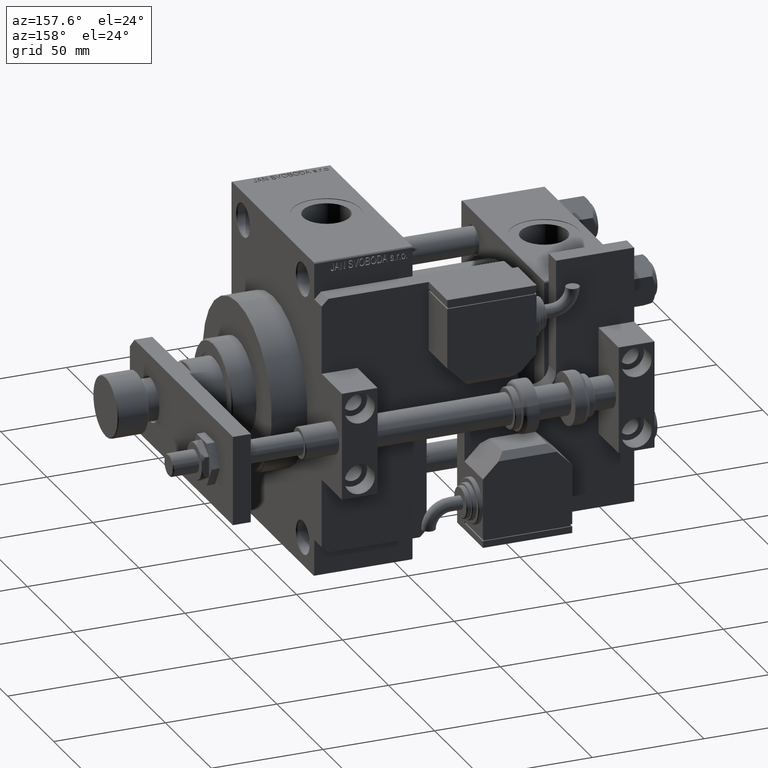
[diagram: clean part render]
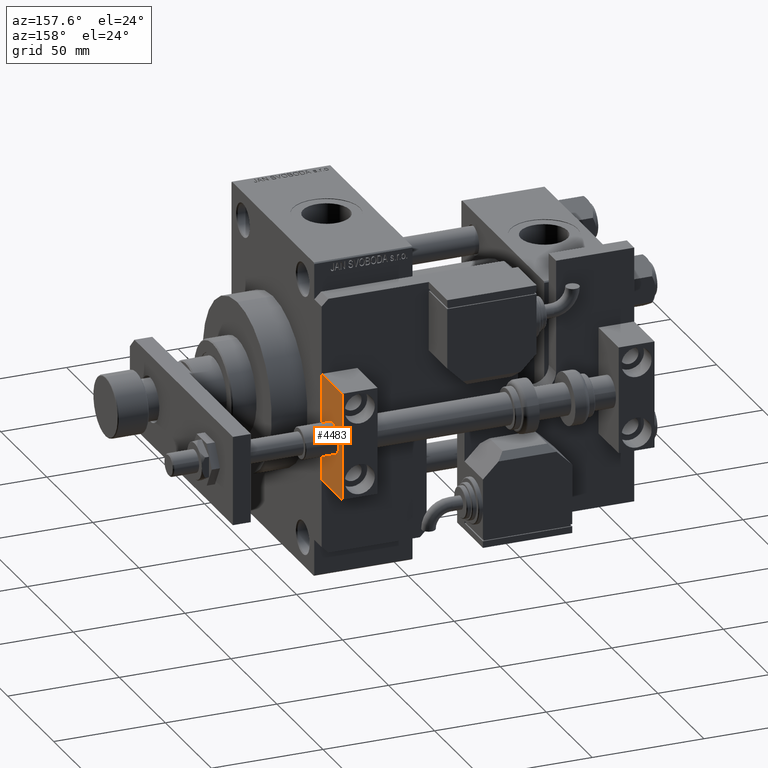
[diagram: same view with one face highlighted and labeled with its STEP entity id]
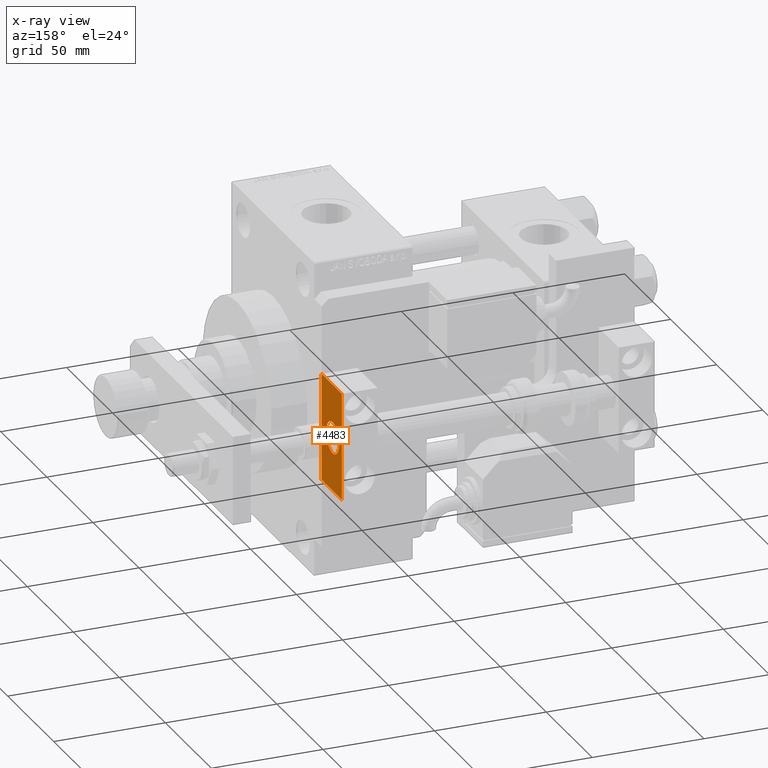
[diagram: x-ray of the same camera — body ghosted, the highlighted face saturated]
A machine part, auxiliary view. The second image highlights one B-rep face of the part: STEP entity #4483.
The next image is the same camera in x-ray: the body ghosted, the highlighted face saturated — about 0% of this face is hidden behind the body in this view.
In plain terms, the highlighted planar face has unit normal (1, 0, 0).
Its self-contained STEP definition (entity closure, byte-faithful):
#1517 = CARTESIAN_POINT ( 'NONE',  ( -7.000000000000000000, 1.000000000000005329, 0.000000000000000000 ) ) ;
#3660 = EDGE_LOOP ( 'NONE', ( #33645, #23035, #7442, #14451 ) ) ;
#3934 = LINE ( 'NONE', #48483, #8014 ) ;
#4483 = ADVANCED_FACE ( 'NONE', ( #49373, #4559 ), #21047, .T. ) ;
#4559 = FACE_OUTER_BOUND ( 'NONE', #3660, .T. ) ;
#5774 = CARTESIAN_POINT ( 'NONE',  ( -23.99999999999999645, 11.00000000000000000, 0.000000000000000000 ) ) ;
#6779 = VERTEX_POINT ( 'NONE', #7701 ) ;
#7442 = ORIENTED_EDGE ( 'NONE', *, *, #33758, .T. ) ;
#7618 = AXIS2_PLACEMENT_3D ( 'NONE', #37518, #16718, #21586 ) ;
#7701 = CARTESIAN_POINT ( 'NONE',  ( 24.00000000000000000, -11.00000000000000000, 0.000000000000000000 ) ) ;
#7733 = DIRECTION ( 'NONE',  ( 0.000000000000000000, 0.000000000000000000, 1.000000000000000000 ) ) ;
#8014 = VECTOR ( 'NONE', #19624, 1000.000000000000000 ) ;
#9591 = DIRECTION ( 'NONE',  ( -1.577021341797098053E-16, 1.000000000000000000, -0.000000000000000000 ) ) ;
#12818 = CARTESIAN_POINT ( 'NONE',  ( 0.000000000000000000, 1.000000000000004441, 0.000000000000000000 ) ) ;
#13803 = CIRCLE ( 'NONE', #37188, 7.000000000000000000 ) ;
#14451 = ORIENTED_EDGE ( 'NONE', *, *, #31395, .T. ) ;
#14704 = CARTESIAN_POINT ( 'NONE',  ( -23.99999999999999289, -10.99999999999999645, 0.000000000000000000 ) ) ;
#14835 = CARTESIAN_POINT ( 'NONE',  ( 23.99999999999999645, 10.99999999999999289, 0.000000000000000000 ) ) ;
#15642 = EDGE_CURVE ( 'NONE', #43045, #20055, #3934, .T. ) ;
#16718 = DIRECTION ( 'NONE',  ( 0.000000000000000000, 0.000000000000000000, 1.000000000000000000 ) ) ;
#19624 = DIRECTION ( 'NONE',  ( -1.000000000000000000, 1.445602896647339410E-16, -0.000000000000000000 ) ) ;
#19929 = CARTESIAN_POINT ( 'NONE',  ( -23.99999999999999289, -10.99999999999999645, 0.000000000000000000 ) ) ;
#19972 = EDGE_CURVE ( 'NONE', #48421, #47893, #13803, .T. ) ;
#20055 = VERTEX_POINT ( 'NONE', #5774 ) ;
#21047 = PLANE ( 'NONE',  #7618 ) ;
#21586 = DIRECTION ( 'NONE',  ( 1.000000000000000000, 0.000000000000000000, -0.000000000000000000 ) ) ;
#22582 = CARTESIAN_POINT ( 'NONE',  ( -23.99999999999999645, 11.00000000000000000, 0.000000000000000000 ) ) ;
#23035 = ORIENTED_EDGE ( 'NONE', *, *, #15642, .T. ) ;
#23383 = DIRECTION ( 'NONE',  ( 1.577021341797097807E-16, -1.000000000000000000, 0.000000000000000000 ) ) ;
#23854 = ORIENTED_EDGE ( 'NONE', *, *, #45191, .F. ) ;
#24404 = EDGE_CURVE ( 'NONE', #6779, #43045, #29868, .T. ) ;
#25876 = ORIENTED_EDGE ( 'NONE', *, *, #19972, .F. ) ;
#27758 = VECTOR ( 'NONE', #9591, 1000.000000000000000 ) ;
#29868 = LINE ( 'NONE', #42260, #27758 ) ;
#31183 = DIRECTION ( 'NONE',  ( 1.000000000000000000, -7.228014483236697048E-17, 0.000000000000000000 ) ) ;
#31395 = EDGE_CURVE ( 'NONE', #52814, #6779, #51679, .T. ) ;
#33645 = ORIENTED_EDGE ( 'NONE', *, *, #24404, .T. ) ;
#33758 = EDGE_CURVE ( 'NONE', #20055, #52814, #47133, .T. ) ;
#37188 = AXIS2_PLACEMENT_3D ( 'NONE', #12818, #37387, #37664 ) ;
#37387 = DIRECTION ( 'NONE',  ( 0.000000000000000000, 0.000000000000000000, 1.000000000000000000 ) ) ;
#37518 = CARTESIAN_POINT ( 'NONE',  ( 0.000000000000000000, 0.000000000000000000, 0.000000000000000000 ) ) ;
#37664 = DIRECTION ( 'NONE',  ( 1.000000000000000000, 0.000000000000000000, 0.000000000000000000 ) ) ;
#40013 = CIRCLE ( 'NONE', #44305, 7.000000000000000000 ) ;
#40106 = VECTOR ( 'NONE', #31183, 1000.000000000000000 ) ;
#40419 = DIRECTION ( 'NONE',  ( 1.000000000000000000, 0.000000000000000000, 0.000000000000000000 ) ) ;
#40804 = EDGE_LOOP ( 'NONE', ( #23854, #25876 ) ) ;
#42260 = CARTESIAN_POINT ( 'NONE',  ( 23.99999999999999645, 10.99999999999999289, 0.000000000000000000 ) ) ;
#43045 = VERTEX_POINT ( 'NONE', #14835 ) ;
#44305 = AXIS2_PLACEMENT_3D ( 'NONE', #48760, #7733, #40419 ) ;
#44364 = VECTOR ( 'NONE', #23383, 1000.000000000000000 ) ;
#45191 = EDGE_CURVE ( 'NONE', #47893, #48421, #40013, .T. ) ;
#45455 = CARTESIAN_POINT ( 'NONE',  ( 7.000000000000000000, 1.000000000000004441, 0.000000000000000000 ) ) ;
#47133 = LINE ( 'NONE', #22582, #44364 ) ;
#47893 = VERTEX_POINT ( 'NONE', #45455 ) ;
#48421 = VERTEX_POINT ( 'NONE', #1517 ) ;
#48483 = CARTESIAN_POINT ( 'NONE',  ( -23.99999999999999645, 11.00000000000000000, 0.000000000000000000 ) ) ;
#48760 = CARTESIAN_POINT ( 'NONE',  ( 0.000000000000000000, 1.000000000000004441, 0.000000000000000000 ) ) ;
#49373 = FACE_BOUND ( 'NONE', #40804, .T. ) ;
#51679 = LINE ( 'NONE', #14704, #40106 ) ;
#52814 = VERTEX_POINT ( 'NONE', #19929 ) ;